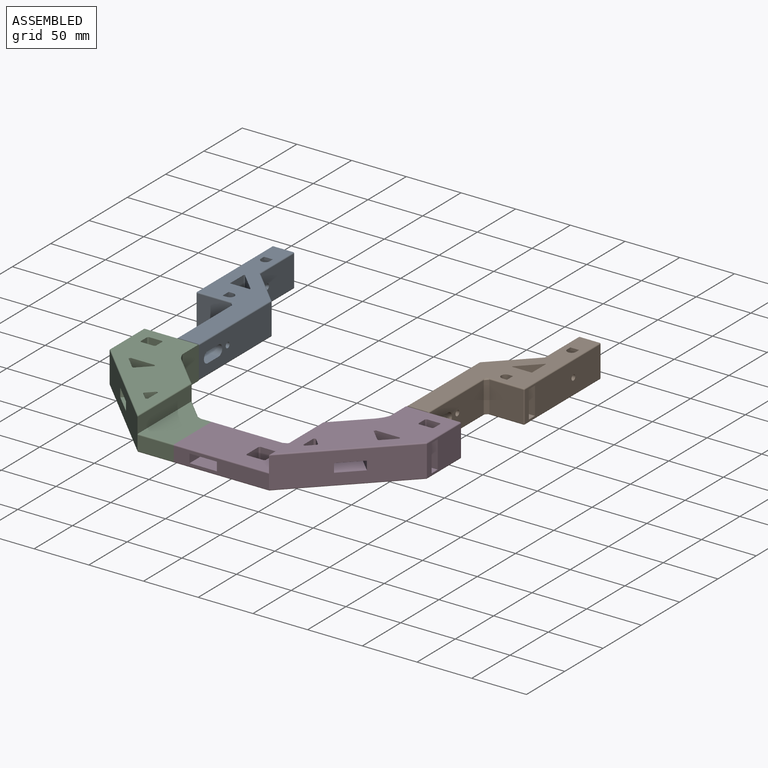
[diagram: assembled view]
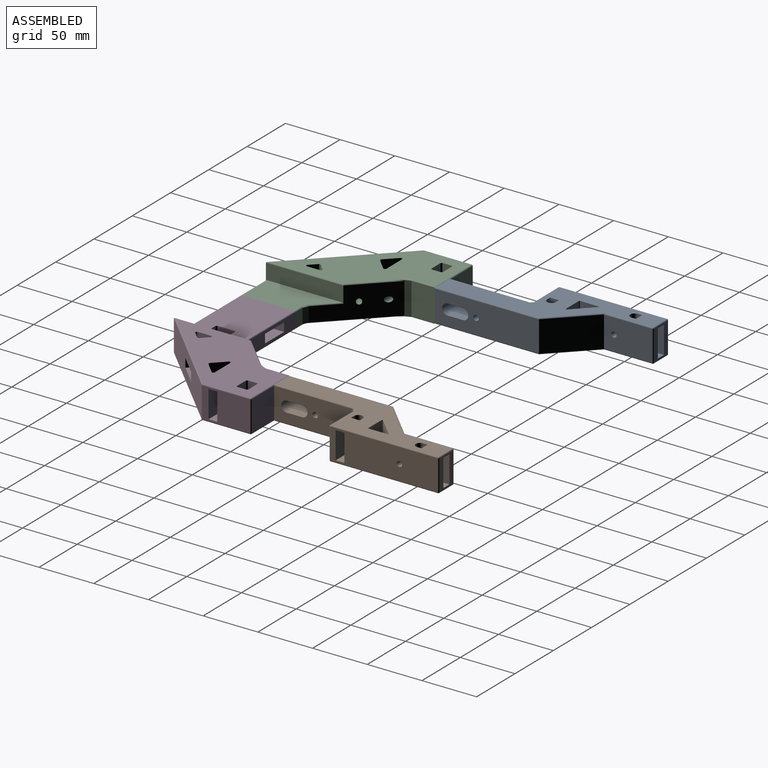
[diagram: assembled view, second angle]
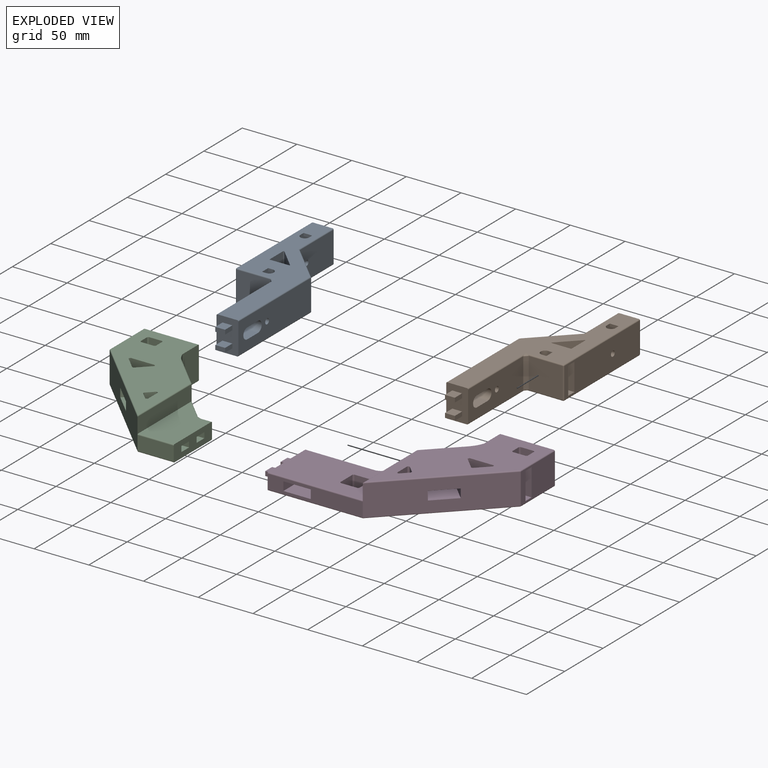
[diagram: exploded view]
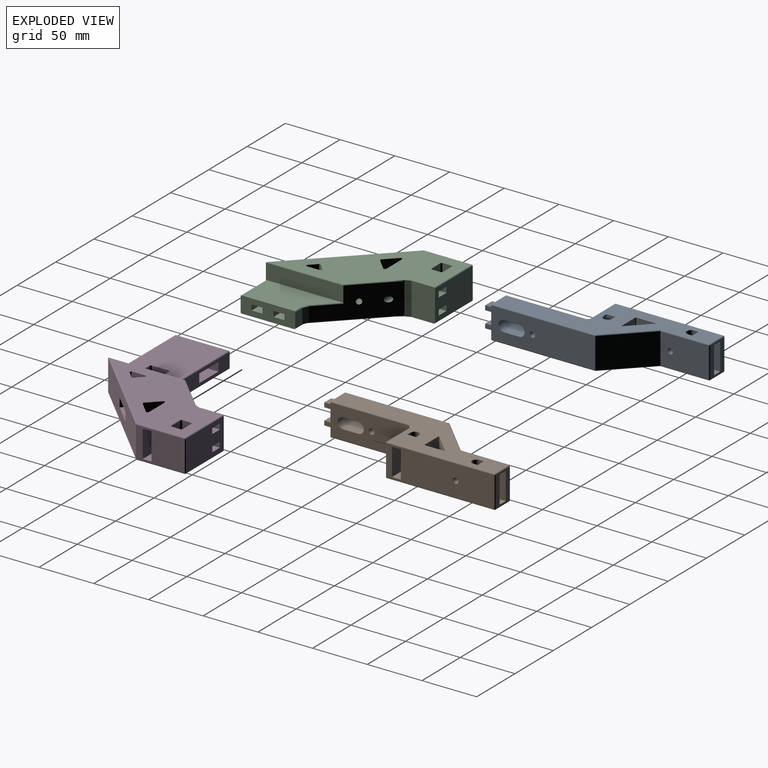
[diagram: exploded view, second angle]
ASSEMBLY  parts=4 mates=3
PART A: 73 faces, bbox 55x184.5x30 mm
  f0: plane 28x18mm, normal (0,1,0), area 304mm2, adj f29,f31,f39,f40,f41,f42,f48,f60
  f1: plane 98.22x28mm, normal (-1,0,0), area 2530.4mm2, adj f30,f31,f32,f33,f34,f35,f38,f50
  f2: plane 174x53mm, normal (0,0,-1), area 4217.3mm2, adj f6,f25,f26,f27,f54,f55,f57,f59
  f3: plane 174x53mm, normal (0,0,1), area 4103mm2, adj f6,f25,f26,f27,f33,f35,f36,f37
  f4: plane 94.59x28mm, normal (1,0,0), area 2410.2mm2, adj f6,f7,f8,f9,f10,f11,f28,f43
  f5: plane 71.92x28mm, normal (-1,0,0), area 1775.6mm2, adj f6,f7,f8,f9,f10,f11,f52,f54
  f6: plane 30x20mm, normal (0,-1,0), area 527.1mm2, adj f2,f3,f4,f5,f12,f13,f14,f15
  f7: cylinder r=5mm len=20mm, axis (-1,0,0), area 314.2mm2, adj f4,f5,f8,f10
  f8: plane 20x14mm, normal (0,0,-1), area 280mm2, adj f4,f5,f7,f9
  f9: cylinder r=5mm len=20mm, axis (-1,0,0), area 314.2mm2, adj f4,f5,f8,f10
  f10: plane 20x14mm, normal (0,0,1), area 280mm2, adj f4,f5,f7,f9
  f11: cylinder r=2.5mm len=20mm, axis (-1,0,0), area 314.2mm2, adj f4,f5
  f12: plane 9.5x9mm, normal (0,0,1), area 85.5mm2, adj f6,f13,f15,f16
  f13: plane 9.5x4mm, normal (-1,0,0), area 38mm2, adj f6,f12,f14,f16
  f14: plane 9.5x9mm, normal (0,0,-1), area 85.5mm2, adj f6,f13,f15,f16
  f15: plane 9.5x4mm, normal (1,0,0), area 38mm2, adj f6,f12,f14,f16
  f16: plane 9x4mm, normal (0,-1,0), area 36mm2, adj f12,f13,f14,f15
  f17: plane 9.5x9mm, normal (0,0,1), area 85.5mm2, adj f6,f18,f20,f21
  f18: plane 9.5x4mm, normal (-1,0,0), area 38mm2, adj f6,f17,f19,f21
  f19: plane 9.5x9mm, normal (0,0,-1), area 85.5mm2, adj f6,f18,f20,f21
  f20: plane 9.5x4mm, normal (1,0,0), area 38mm2, adj f6,f17,f19,f21
  f21: plane 9x4mm, normal (0,-1,0), area 36mm2, adj f17,f18,f19,f20
  f22: plane 44x28mm, normal (1,0,0), area 1212.4mm2, adj f24,f29,f38,f46,f64
  f23: plane 31x28mm, normal (0,-1,0), area 867.9mm2, adj f30,f53,f55,f66
  f24: plane 34.71x34.71mm, normal (0.71,0.71,0), area 1374.3mm2, adj f22,f28,f45,f63
  f25: plane 30x17.71mm, normal (-0.71,-0.71,0), area 751.6mm2, adj f2,f3,f70,f72
  f26: plane 30x17.79mm, normal (1,0,0), area 533.6mm2, adj f2,f3,f71,f72
  f27: plane 30x17.71mm, normal (0,1,0), area 531.4mm2, adj f2,f3,f70,f71
  f28: cylinder r=1mm len=28mm, axis (0,0,1), area 22mm2, adj f4,f24,f44,f61
  f29: cylinder r=1mm len=28mm, axis (0,0,-1), area 44mm2, adj f0,f22,f47,f62
  f30: cylinder r=1mm len=28mm, axis (0,0,-1), area 44.1mm2, adj f1,f23,f51,f56
  f31: cylinder r=1mm len=28mm, axis (0,0,1), area 44mm2, adj f0,f1,f49,f58
  f32: plane 20x8mm, normal (0,0,-1), area 160mm2, adj f1,f33,f35,f36
  f33: plane 27.5x24mm, normal (0,-1,0), area 610mm2, adj f1,f3,f32,f34,f36,f37
  f34: plane 28x8mm, normal (0,0,1), area 217.1mm2, adj f1,f33,f35,f37
  f35: plane 27.5x24mm, normal (0,1,0), area 610mm2, adj f1,f3,f32,f34,f36,f37
  f36: plane 8x2.5mm, normal (1,0,0), area 20mm2, adj f3,f32,f33,f35
  f37: cylinder r=4mm len=27.5mm, axis (0,0,1), area 345.6mm2, adj f3,f33,f34,f35
  f38: cylinder r=2.5mm len=20mm, axis (-1,0,0), area 314.2mm2, adj f1,f22
  f39: plane 20x8mm, normal (0,0,-1), area 160mm2, adj f0,f40,f42,f68
  f40: plane 27.5x24mm, normal (-1,0,0), area 610mm2, adj f0,f3,f39,f41,f68,f69
  f41: plane 28x8mm, normal (0,0,1), area 217.1mm2, adj f0,f40,f42,f69
  f42: plane 27.5x24mm, normal (1,0,0), area 610mm2, adj f0,f3,f39,f41,f68,f69
  f43: cylinder r=1mm len=94.59mm, axis (0,-1,0), area 148.6mm2, adj f3,f4,f6,f44
  f44: sphere r=1mm, area 0.5mm2, adj f28,f43,f45
  f45: cylinder r=1mm len=35.71mm, axis (-0.71,0.71,0), area 77.4mm2, adj f3,f24,f44,f46
  f46: cylinder r=1mm len=44.41mm, axis (0,1,0), area 69.4mm2, adj f3,f22,f45,f47
  f47: sphere r=1mm, area 1mm2, adj f29,f46,f48
  f48: cylinder r=1mm len=18mm, axis (-1,0,0), area 28.3mm2, adj f0,f3,f47,f49
  f49: sphere r=1mm, area 2.1mm2, adj f31,f48,f50
  f50: cylinder r=1mm len=98.22mm, axis (0,-1,0), area 154.3mm2, adj f1,f3,f49,f51
  f51: sphere r=1mm, area 1.6mm2, adj f30,f50,f53
  f52: cylinder r=1mm len=75.92mm, axis (0,-1,0), area 115.3mm2, adj f3,f5,f6,f65
  f53: cylinder r=1mm len=35mm, axis (1,0,0), area 51mm2, adj f3,f23,f51,f65
  f54: cylinder r=1mm len=75.92mm, axis (0,-1,0), area 115.3mm2, adj f2,f5,f6,f67
  f55: cylinder r=1mm len=35mm, axis (1,0,0), area 51mm2, adj f2,f23,f56,f67
  f56: sphere r=1mm, area 1.6mm2, adj f30,f55,f57
  f57: cylinder r=1mm len=98.22mm, axis (0,-1,0), area 154.3mm2, adj f1,f2,f56,f58
  f58: sphere r=1mm, area 2.1mm2, adj f31,f57,f60
  f59: cylinder r=1mm len=94.59mm, axis (0,1,0), area 148.6mm2, adj f2,f4,f6,f61
  f60: cylinder r=1mm len=18mm, axis (-1,0,0), area 28.3mm2, adj f0,f2,f58,f62
  f61: sphere r=1mm, area 0.5mm2, adj f28,f59,f63
  f62: sphere r=1mm, area 1mm2, adj f29,f60,f64
  f63: cylinder r=1mm len=35.71mm, axis (-0.71,0.71,0), area 77.4mm2, adj f2,f24,f61,f64
  f64: cylinder r=1mm len=44.41mm, axis (0,1,0), area 69.4mm2, adj f2,f22,f62,f63
  f65: bspline ~4.01x4mm, area 4.7mm2, adj f52,f53,f66
  f66: plane 28x3mm, normal (-0.71,-0.71,0), area 118.6mm2, adj f5,f23,f65,f67
  f67: bspline ~4.01x4mm, area 4.7mm2, adj f54,f55,f66
  f68: plane 8x2.5mm, normal (0,-1,0), area 20mm2, adj f3,f39,f40,f42
  f69: cylinder r=4mm len=27.5mm, axis (0,0,1), area 345.6mm2, adj f3,f40,f41,f42
  f70: plane 30x0.71mm, normal (-0.92,0.38,0), area 22.9mm2, adj f2,f3,f25,f27
  f71: plane 30x0.42mm, normal (0.71,0.71,0), area 17.6mm2, adj f2,f3,f26,f27
  f72: plane 30x0.71mm, normal (0.38,-0.92,0), area 23mm2, adj f2,f3,f25,f26
PART B: 73 faces, bbox 55x184.5x30 mm
  f0: plane 28x18mm, normal (0,1,0), area 304mm2, adj f29,f31,f39,f40,f41,f42,f48,f60
  f1: plane 98.22x28mm, normal (1,0,0), area 2530.4mm2, adj f30,f31,f32,f33,f34,f35,f38,f50
  f2: plane 174x53mm, normal (0,0,-1), area 4217.3mm2, adj f6,f25,f26,f27,f54,f55,f57,f59
  f3: plane 174x53mm, normal (0,0,1), area 4103mm2, adj f6,f25,f26,f27,f33,f35,f36,f37
  f4: plane 94.59x28mm, normal (-1,0,0), area 2410.2mm2, adj f6,f7,f8,f9,f10,f11,f28,f43
  f5: plane 71.92x28mm, normal (1,0,0), area 1775.6mm2, adj f6,f7,f8,f9,f10,f11,f52,f54
  f6: plane 30x20mm, normal (0,-1,0), area 527.1mm2, adj f2,f3,f4,f5,f12,f13,f14,f15
  f7: cylinder r=5mm len=20mm, axis (1,0,0), area 314.2mm2, adj f4,f5,f8,f10
  f8: plane 20x14mm, normal (0,0,-1), area 280mm2, adj f4,f5,f7,f9
  f9: cylinder r=5mm len=20mm, axis (1,0,0), area 314.2mm2, adj f4,f5,f8,f10
  f10: plane 20x14mm, normal (0,0,1), area 280mm2, adj f4,f5,f7,f9
  f11: cylinder r=2.5mm len=20mm, axis (1,0,0), area 314.2mm2, adj f4,f5
  f12: plane 9.5x9mm, normal (0,0,1), area 85.5mm2, adj f6,f13,f15,f16
  f13: plane 9.5x4mm, normal (1,0,0), area 38mm2, adj f6,f12,f14,f16
  f14: plane 9.5x9mm, normal (0,0,-1), area 85.5mm2, adj f6,f13,f15,f16
  f15: plane 9.5x4mm, normal (-1,0,0), area 38mm2, adj f6,f12,f14,f16
  f16: plane 9x4mm, normal (0,-1,0), area 36mm2, adj f12,f13,f14,f15
  f17: plane 9.5x9mm, normal (0,0,1), area 85.5mm2, adj f6,f18,f20,f21
  f18: plane 9.5x4mm, normal (1,0,0), area 38mm2, adj f6,f17,f19,f21
  f19: plane 9.5x9mm, normal (0,0,-1), area 85.5mm2, adj f6,f18,f20,f21
  f20: plane 9.5x4mm, normal (-1,0,0), area 38mm2, adj f6,f17,f19,f21
  f21: plane 9x4mm, normal (0,-1,0), area 36mm2, adj f17,f18,f19,f20
  f22: plane 44x28mm, normal (-1,0,0), area 1212.4mm2, adj f24,f29,f38,f46,f64
  f23: plane 31x28mm, normal (0,-1,0), area 867.9mm2, adj f30,f53,f55,f66
  f24: plane 34.71x34.71mm, normal (-0.71,0.71,0), area 1374.3mm2, adj f22,f28,f45,f63
  f25: plane 30x17.71mm, normal (0.71,-0.71,0), area 751.2mm2, adj f2,f3,f70,f72
  f26: plane 30x17.78mm, normal (-1,0,0), area 533.3mm2, adj f2,f3,f70,f71
  f27: plane 30x17.71mm, normal (0,1,0), area 531.2mm2, adj f2,f3,f71,f72
  f28: cylinder r=1mm len=28mm, axis (0,0,1), area 22mm2, adj f4,f24,f44,f61
  f29: cylinder r=1mm len=28mm, axis (0,0,-1), area 44mm2, adj f0,f22,f47,f62
  f30: cylinder r=1mm len=28mm, axis (0,0,-1), area 44.1mm2, adj f1,f23,f51,f56
  f31: cylinder r=1mm len=28mm, axis (0,0,1), area 44mm2, adj f0,f1,f49,f58
  f32: plane 20x8mm, normal (0,0,-1), area 160mm2, adj f1,f33,f35,f36
  f33: plane 27.5x24mm, normal (0,-1,0), area 610mm2, adj f1,f3,f32,f34,f36,f37
  f34: plane 28x8mm, normal (0,0,1), area 217.1mm2, adj f1,f33,f35,f37
  f35: plane 27.5x24mm, normal (0,1,0), area 610mm2, adj f1,f3,f32,f34,f36,f37
  f36: plane 8x2.5mm, normal (-1,0,0), area 20mm2, adj f3,f32,f33,f35
  f37: cylinder r=4mm len=27.5mm, axis (0,0,1), area 345.6mm2, adj f3,f33,f34,f35
  f38: cylinder r=2.5mm len=20mm, axis (1,0,0), area 314.2mm2, adj f1,f22
  f39: plane 20x8mm, normal (0,0,-1), area 160mm2, adj f0,f40,f42,f68
  f40: plane 27.5x24mm, normal (1,0,0), area 610mm2, adj f0,f3,f39,f41,f68,f69
  f41: plane 28x8mm, normal (0,0,1), area 217.1mm2, adj f0,f40,f42,f69
  f42: plane 27.5x24mm, normal (-1,0,0), area 610mm2, adj f0,f3,f39,f41,f68,f69
  f43: cylinder r=1mm len=94.59mm, axis (0,-1,0), area 148.6mm2, adj f3,f4,f6,f44
  f44: sphere r=1mm, area 0.8mm2, adj f28,f43,f45
  f45: cylinder r=1mm len=35.71mm, axis (0.71,0.71,0), area 77.4mm2, adj f3,f24,f44,f46
  f46: cylinder r=1mm len=44.41mm, axis (0,1,0), area 69.4mm2, adj f3,f22,f45,f47
  f47: sphere r=1mm, area 1.6mm2, adj f29,f46,f48
  f48: cylinder r=1mm len=18mm, axis (1,0,0), area 28.3mm2, adj f0,f3,f47,f49
  f49: sphere r=1mm, area 1.6mm2, adj f31,f48,f50
  f50: cylinder r=1mm len=98.22mm, axis (0,-1,0), area 154.3mm2, adj f1,f3,f49,f51
  f51: sphere r=1mm, area 2.1mm2, adj f30,f50,f53
  f52: cylinder r=1mm len=75.92mm, axis (0,-1,0), area 115.3mm2, adj f3,f5,f6,f65
  f53: cylinder r=1mm len=35mm, axis (-1,0,0), area 51mm2, adj f3,f23,f51,f65
  f54: cylinder r=1mm len=75.92mm, axis (0,-1,0), area 115.3mm2, adj f2,f5,f6,f67
  f55: cylinder r=1mm len=35mm, axis (-1,0,0), area 51mm2, adj f2,f23,f56,f67
  f56: sphere r=1mm, area 2.1mm2, adj f30,f55,f57
  f57: cylinder r=1mm len=98.22mm, axis (0,-1,0), area 154.3mm2, adj f1,f2,f56,f58
  f58: sphere r=1mm, area 1.6mm2, adj f31,f57,f60
  f59: cylinder r=1mm len=94.59mm, axis (0,1,0), area 148.6mm2, adj f2,f4,f6,f61
  f60: cylinder r=1mm len=18mm, axis (1,0,0), area 28.3mm2, adj f0,f2,f58,f62
  f61: sphere r=1mm, area 0.8mm2, adj f28,f59,f63
  f62: sphere r=1mm, area 1.6mm2, adj f29,f60,f64
  f63: cylinder r=1mm len=35.71mm, axis (0.71,0.71,0), area 77.4mm2, adj f2,f24,f61,f64
  f64: cylinder r=1mm len=44.41mm, axis (0,1,0), area 69.4mm2, adj f2,f22,f62,f63
  f65: bspline ~4.01x4mm, area 4.7mm2, adj f52,f53,f66
  f66: plane 28x3mm, normal (0.71,-0.71,0), area 118.6mm2, adj f5,f23,f65,f67
  f67: bspline ~4.01x4mm, area 4.7mm2, adj f54,f55,f66
  f68: plane 8x2.5mm, normal (0,-1,0), area 20mm2, adj f3,f39,f40,f42
  f69: cylinder r=4mm len=27.5mm, axis (0,0,1), area 345.6mm2, adj f3,f40,f41,f42
  f70: plane 30x0.71mm, normal (-0.38,-0.92,0), area 23.1mm2, adj f2,f3,f25,f26
  f71: plane 30x0.42mm, normal (-0.71,0.71,0), area 17.7mm2, adj f2,f3,f26,f27
  f72: plane 30x0.71mm, normal (0.92,0.38,0), area 23.1mm2, adj f2,f3,f25,f27
PART C: 89 faces, bbox 119.1x131.1x45.7 mm
  f0: plane 50x15mm, normal (1,0,0), area 649.1mm2, adj f1,f2,f3,f4,f5,f6,f7,f27
  f1: plane 128.07x117mm, normal (0,0,-1), area 7117.1mm2, adj f0,f4,f6,f10,f39,f40,f42,f52
  f2: plane 13x9.35mm, normal (0,1,0), area 121.6mm2, adj f0,f5,f6,f57
  f3: plane 33.06x13mm, normal (0,-1,0), area 429.8mm2, adj f0,f4,f7,f24
  f4: cylinder r=1mm len=33.06mm, axis (-1,0,0), area 51.6mm2, adj f0,f1,f3,f39
  f5: cylinder r=1mm len=12.76mm, axis (1,0,0), area 16.6mm2, adj f0,f2,f27,f58
  f6: cylinder r=1mm len=12.76mm, axis (1,0,0), area 16.6mm2, adj f0,f1,f2,f56
  f7: cylinder r=1mm len=33.06mm, axis (-1,0,0), area 51.9mm2, adj f0,f3,f26,f27
  f8: plane 126.65x82.94mm, normal (0,0,1), area 5254.6mm2, adj f10,f45,f47,f48,f49,f51,f55,f59
  f9: plane 49x28mm, normal (0,1,0), area 1272mm2, adj f10,f28,f29,f30,f31,f33,f34,f35
  f10: plane 30x21.5mm, normal (1,0,0), area 642mm2, adj f1,f8,f9,f42,f51,f53,f54,f55
  f11: plane 17.68x17.68mm, normal (-0.71,-0.71,0), area 180.4mm2, adj f17,f18,f19,f20,f21
  f12: plane 25x8mm, normal (-1,0,0), area 180.4mm2, adj f13,f14,f15,f16,f22
  f13: plane 20x8mm, normal (0,0,-1), area 160mm2, adj f12,f14,f16,f23
  f14: plane 25x20mm, normal (0,1,0), area 500mm2, adj f12,f13,f15,f23
  f15: plane 20x8mm, normal (0,0,1), area 160mm2, adj f12,f14,f16,f23
  f16: plane 25x20mm, normal (0,-1,0), area 500mm2, adj f12,f13,f15,f23
  f17: plane 14.14x14.14mm, normal (-0.71,0.71,0), area 160mm2, adj f11,f18,f20,f24
  f18: plane 31.82x31.82mm, normal (0,0,1), area 500mm2, adj f11,f17,f19,f24
  f19: plane 14.14x14.14mm, normal (0.71,-0.71,0), area 160mm2, adj f11,f18,f20,f24
  f20: plane 31.82x31.82mm, normal (0,0,-1), area 500mm2, adj f11,f17,f19,f24
  f21: cylinder r=2.5mm len=24.75mm, axis (-0.71,-0.71,0), area 471.2mm2, adj f11,f25
  f22: cylinder r=2.5mm len=43.09mm, axis (-1,0,0), area 638.8mm2, adj f12,f25
  f23: plane 44.12x28mm, normal (-1,0,0), area 1035.4mm2, adj f13,f14,f15,f16,f24,f38,f40,f49
  f24: plane 84.94x84.94mm, normal (-0.71,-0.71,0), area 3163.4mm2, adj f3,f17,f18,f19,f20,f23,f26,f39
  f25: plane 52.46x52.46mm, normal (0.71,0.71,0), area 1587.7mm2, adj f21,f22,f43,f44,f45,f52,f54,f57
  f26: plane 70.36x15.06mm, normal (1,0,0), area 984.5mm2, adj f7,f24,f27,f43,f44,f47
  f27: plane 68.3x33.06mm, normal (0,0,1), area 1792.9mm2, adj f0,f5,f7,f26,f43
  f28: plane 10x10mm, normal (0,0,-1), area 100mm2, adj f9,f29,f31,f32
  f29: plane 10x5mm, normal (1,0,0), area 50mm2, adj f9,f28,f30,f32
  f30: plane 10x10mm, normal (0,0,1), area 100mm2, adj f9,f29,f31,f32
  f31: plane 10x5mm, normal (-1,0,0), area 50mm2, adj f9,f28,f30,f32
  f32: plane 10x5mm, normal (0,1,0), area 50mm2, adj f28,f29,f30,f31
  f33: plane 10x10mm, normal (0,0,-1), area 100mm2, adj f9,f34,f36,f37
  f34: plane 10x5mm, normal (1,0,0), area 50mm2, adj f9,f33,f35,f37
  f35: plane 10x10mm, normal (0,0,1), area 100mm2, adj f9,f34,f36,f37
  f36: plane 10x5mm, normal (-1,0,0), area 50mm2, adj f9,f33,f35,f37
  f37: plane 10x5mm, normal (0,1,0), area 50mm2, adj f33,f34,f35,f36
  f38: cylinder r=1mm len=28mm, axis (0,0,-1), area 44mm2, adj f9,f23,f41,f50
  f39: cylinder r=1mm len=85.65mm, axis (-0.71,0.71,0), area 188mm2, adj f1,f4,f24,f40
  f40: cylinder r=1mm len=44.12mm, axis (0,1,0), area 69mm2, adj f1,f23,f39,f41
  f41: sphere r=1mm, area 1.6mm2, adj f38,f40,f42
  f42: cylinder r=1mm len=49mm, axis (1,0,0), area 77mm2, adj f1,f9,f10,f41
  f43: cylinder r=1mm len=22mm, axis (0.71,-0.71,0), area 42.8mm2, adj f25,f26,f27,f44,f58
  f44: cylinder r=1mm len=15mm, axis (0,0,-1), area 11.5mm2, adj f25,f26,f43,f46
  f45: cylinder r=1mm len=33.23mm, axis (-0.71,0.71,0), area 67.5mm2, adj f8,f25,f46,f55
  f46: sphere r=1mm, area 0.8mm2, adj f44,f45,f47
  f47: cylinder r=1mm len=70.3mm, axis (0,-1,0), area 108.5mm2, adj f8,f26,f46,f48
  f48: cylinder r=1mm len=85.65mm, axis (0.71,-0.71,0), area 186.5mm2, adj f8,f24,f47,f49
  f49: cylinder r=1mm len=44.12mm, axis (0,-1,0), area 69mm2, adj f8,f23,f48,f50
  f50: sphere r=1mm, area 1.6mm2, adj f38,f49,f51
  f51: cylinder r=1mm len=49mm, axis (1,0,0), area 77mm2, adj f8,f9,f10,f50
  f52: cylinder r=1mm len=54.53mm, axis (0.71,-0.71,0), area 110.4mm2, adj f1,f25,f53,f56
  f53: bspline ~12.57x8.31mm, area 7.3mm2, adj f1,f10,f52,f54
  f54: plane 28x5.12mm, normal (0.92,0.38,0), area 155.2mm2, adj f10,f25,f53,f55
  f55: bspline ~12.57x8.31mm, area 7.3mm2, adj f8,f10,f45,f54
  f56: bspline ~5.13x3.12mm, area 8.2mm2, adj f6,f52,f57
  f57: plane 13x5.12mm, normal (0.38,0.92,0), area 72.1mm2, adj f2,f25,f56,f58
  f58: bspline ~5.13x3.12mm, area 8.2mm2, adj f5,f43,f57
  f59: plane 30x12mm, normal (0,-1,0), area 360mm2, adj f1,f8,f87,f88
  f60: plane 30x8.5mm, normal (-1,0,0), area 254.9mm2, adj f1,f8,f79,f87
  f61: plane 30x12mm, normal (0,1,0), area 360mm2, adj f1,f8,f79,f83
  f62: plane 30x8.5mm, normal (1,0,0), area 254.9mm2, adj f1,f8,f83,f88
  f63: plane 30x22.25mm, normal (0,-1,0), area 667.6mm2, adj f1,f8,f81,f86
  f64: plane 30x11.13mm, normal (-0.71,0.71,0), area 472mm2, adj f1,f8,f84,f86
  f65: plane 30x11.13mm, normal (0.71,0.71,0), area 472mm2, adj f1,f8,f81,f84
  f66: plane 30x13.48mm, normal (-1,0,0), area 404.3mm2, adj f1,f8,f80,f85
  f67: plane 30x6.74mm, normal (0.71,0.71,0), area 285.9mm2, adj f1,f8,f82,f85
  f68: plane 30x6.74mm, normal (0.71,-0.71,0), area 285.9mm2, adj f1,f8,f80,f82
  f69: plane 10x10mm, normal (0,0,-1), area 100mm2, adj f0,f70,f72,f73
  f70: plane 10x5mm, normal (0,1,0), area 50mm2, adj f0,f69,f71,f73
  f71: plane 10x10mm, normal (0,0,1), area 100mm2, adj f0,f70,f72,f73
  f72: plane 10x5mm, normal (0,-1,0), area 50mm2, adj f0,f69,f71,f73
  f73: plane 10x5mm, normal (1,0,0), area 50mm2, adj f69,f70,f71,f72
  f74: plane 10x10mm, normal (0,0,-1), area 100mm2, adj f0,f75,f77,f78
  f75: plane 10x5mm, normal (0,1,0), area 50mm2, adj f0,f74,f76,f78
  f76: plane 10x10mm, normal (0,0,1), area 100mm2, adj f0,f75,f77,f78
  f77: plane 10x5mm, normal (0,-1,0), area 50mm2, adj f0,f74,f76,f78
  f78: plane 10x5mm, normal (1,0,0), area 50mm2, adj f74,f75,f76,f77
  f79: plane 30x1mm, normal (-0.71,0.71,0), area 42.4mm2, adj f1,f8,f60,f61
  f80: plane 30x1.71mm, normal (-0.38,-0.92,0), area 55.4mm2, adj f1,f8,f66,f68
  f81: plane 30x1.71mm, normal (0.92,-0.38,0), area 55.4mm2, adj f1,f8,f63,f65
  f82: plane 30x1.41mm, normal (1,0,0), area 42.4mm2, adj f1,f8,f67,f68
  f83: plane 30x1mm, normal (0.71,0.71,0), area 42.4mm2, adj f1,f8,f61,f62
  f84: plane 30x1.41mm, normal (0,1,0), area 42.4mm2, adj f1,f8,f64,f65
  f85: plane 30x1.71mm, normal (-0.38,0.92,0), area 55.4mm2, adj f1,f8,f66,f67
  f86: plane 30x1.71mm, normal (-0.92,-0.38,0), area 55.4mm2, adj f1,f8,f63,f64
  f87: plane 30x1mm, normal (-0.71,-0.71,0), area 42.4mm2, adj f1,f8,f59,f60
  f88: plane 30x1mm, normal (0.71,-0.71,0), area 42.4mm2, adj f1,f8,f59,f62
PART D: 101 faces, bbox 182.6x131.1x45.5 mm
  f0: plane 171x128.07mm, normal (0,0,-1), area 9397.8mm2, adj f2,f5,f7,f11,f43,f44,f46,f56
  f1: plane 87.06x68.3mm, normal (0,0,1), area 4070.8mm2, adj f2,f6,f8,f27,f47,f83,f84,f85
  f2: plane 50x15mm, normal (-1,0,0), area 677.1mm2, adj f0,f1,f3,f4,f5,f6,f7,f8
  f3: plane 63.35x13mm, normal (0,1,0), area 623.6mm2, adj f2,f6,f7,f28,f29,f30,f31,f61
  f4: plane 87.06x13mm, normal (0,-1,0), area 931.8mm2, adj f2,f5,f8,f25,f28,f29,f30,f31
  f5: cylinder r=1mm len=87.06mm, axis (1,0,0), area 136.4mm2, adj f0,f2,f4,f43
  f6: cylinder r=1mm len=66.76mm, axis (-1,0,0), area 101.5mm2, adj f1,f2,f3,f62
  f7: cylinder r=1mm len=66.76mm, axis (-1,0,0), area 101.5mm2, adj f0,f2,f3,f60
  f8: cylinder r=1mm len=87.06mm, axis (1,0,0), area 136.8mm2, adj f1,f2,f4,f27
  f9: plane 126.65x82.94mm, normal (0,0,1), area 5254.6mm2, adj f11,f49,f51,f52,f53,f55,f59,f63
  f10: plane 49x28mm, normal (0,1,0), area 1272mm2, adj f11,f32,f33,f34,f35,f37,f38,f39
  f11: plane 30x21.5mm, normal (-1,0,0), area 642mm2, adj f0,f9,f10,f46,f55,f57,f58,f59
  f12: plane 17.68x17.68mm, normal (0.71,-0.71,0), area 180.4mm2, adj f18,f19,f20,f21,f22
  f13: plane 25x8mm, normal (1,0,0), area 180.4mm2, adj f14,f15,f16,f17,f23
  f14: plane 20x8mm, normal (0,0,-1), area 160mm2, adj f13,f15,f17,f24
  f15: plane 25x20mm, normal (0,1,0), area 500mm2, adj f13,f14,f16,f24
  f16: plane 20x8mm, normal (0,0,1), area 160mm2, adj f13,f15,f17,f24
  f17: plane 25x20mm, normal (0,-1,0), area 500mm2, adj f13,f14,f16,f24
  f18: plane 14.14x14.14mm, normal (0.71,0.71,0), area 160mm2, adj f12,f19,f21,f25
  f19: plane 31.82x31.82mm, normal (0,0,1), area 500mm2, adj f12,f18,f20,f25
  f20: plane 14.14x14.14mm, normal (-0.71,-0.71,0), area 160mm2, adj f12,f19,f21,f25
  f21: plane 31.82x31.82mm, normal (0,0,-1), area 500mm2, adj f12,f18,f20,f25
  f22: cylinder r=2.5mm len=24.75mm, axis (0.71,-0.71,0), area 471.2mm2, adj f12,f26
  f23: cylinder r=2.5mm len=43.09mm, axis (1,0,0), area 638.8mm2, adj f13,f26
  f24: plane 44.12x28mm, normal (1,0,0), area 1035.4mm2, adj f14,f15,f16,f17,f25,f42,f44,f53
  f25: plane 84.94x84.94mm, normal (0.71,-0.71,0), area 3163.4mm2, adj f4,f18,f19,f20,f21,f24,f27,f43
  f26: plane 52.46x52.46mm, normal (-0.71,0.71,0), area 1587.7mm2, adj f22,f23,f47,f48,f49,f56,f58,f61
  f27: plane 70.36x15.06mm, normal (-1,0,0), area 984.5mm2, adj f1,f8,f25,f47,f48,f51
  f28: plane 50x8mm, normal (-1,0,0), area 400mm2, adj f3,f4,f29,f30
  f29: plane 50x25mm, normal (0,0,-1), area 1250mm2, adj f3,f4,f28,f31
  f30: plane 50x25mm, normal (0,0,1), area 1250mm2, adj f3,f4,f28,f31
  f31: plane 50x8mm, normal (1,0,0), area 400mm2, adj f3,f4,f29,f30
  f32: plane 10x10mm, normal (0,0,-1), area 100mm2, adj f10,f33,f35,f36
  f33: plane 10x5mm, normal (-1,0,0), area 50mm2, adj f10,f32,f34,f36
  f34: plane 10x10mm, normal (0,0,1), area 100mm2, adj f10,f33,f35,f36
  f35: plane 10x5mm, normal (1,0,0), area 50mm2, adj f10,f32,f34,f36
  f36: plane 10x5mm, normal (0,1,0), area 50mm2, adj f32,f33,f34,f35
  f37: plane 10x10mm, normal (0,0,-1), area 100mm2, adj f10,f38,f40,f41
  f38: plane 10x5mm, normal (-1,0,0), area 50mm2, adj f10,f37,f39,f41
  f39: plane 10x10mm, normal (0,0,1), area 100mm2, adj f10,f38,f40,f41
  f40: plane 10x5mm, normal (1,0,0), area 50mm2, adj f10,f37,f39,f41
  f41: plane 10x5mm, normal (0,1,0), area 50mm2, adj f37,f38,f39,f40
  f42: cylinder r=1mm len=28mm, axis (0,0,-1), area 44mm2, adj f10,f24,f45,f54
  f43: cylinder r=1mm len=85.65mm, axis (0.71,0.71,0), area 188mm2, adj f0,f5,f25,f44
  f44: cylinder r=1mm len=44.12mm, axis (0,1,0), area 69mm2, adj f0,f24,f43,f45
  f45: sphere r=1mm, area 1mm2, adj f42,f44,f46
  f46: cylinder r=1mm len=49mm, axis (-1,0,0), area 77mm2, adj f0,f10,f11,f45
  f47: cylinder r=1mm len=22mm, axis (-0.71,-0.71,0), area 42.8mm2, adj f1,f26,f27,f48,f62
  f48: cylinder r=1mm len=15mm, axis (0,0,-1), area 11.5mm2, adj f26,f27,f47,f50
  f49: cylinder r=1mm len=33.23mm, axis (0.71,0.71,0), area 67.5mm2, adj f9,f26,f50,f59
  f50: sphere r=1mm, area 0.8mm2, adj f48,f49,f51
  f51: cylinder r=1mm len=70.3mm, axis (0,-1,0), area 108.5mm2, adj f9,f27,f50,f52
  f52: cylinder r=1mm len=85.65mm, axis (-0.71,-0.71,0), area 186.5mm2, adj f9,f25,f51,f53
  f53: cylinder r=1mm len=44.12mm, axis (0,-1,0), area 69mm2, adj f9,f24,f52,f54
  f54: sphere r=1mm, area 1mm2, adj f42,f53,f55
  f55: cylinder r=1mm len=49mm, axis (-1,0,0), area 77mm2, adj f9,f10,f11,f54
  f56: cylinder r=1mm len=54.53mm, axis (-0.71,-0.71,0), area 110.4mm2, adj f0,f26,f57,f60
  f57: bspline ~11.66x8.24mm, area 7.3mm2, adj f0,f11,f56,f58
  f58: plane 28x5.12mm, normal (-0.92,0.38,0), area 155.2mm2, adj f11,f26,f57,f59
  f59: bspline ~11.66x8.24mm, area 7.3mm2, adj f9,f11,f49,f58
  f60: bspline ~5.13x3.12mm, area 8.2mm2, adj f7,f56,f61
  f61: plane 13x5.12mm, normal (-0.38,0.92,0), area 72.1mm2, adj f3,f26,f60,f62
  f62: bspline ~5.13x3.12mm, area 8.2mm2, adj f6,f47,f61
  f63: plane 30x12mm, normal (0,-1,0), area 360mm2, adj f0,f9,f97,f100
  f64: plane 30x8.5mm, normal (1,0,0), area 254.9mm2, adj f0,f9,f89,f100
  f65: plane 30x12mm, normal (0,1,0), area 360mm2, adj f0,f9,f89,f92
  f66: plane 30x8.5mm, normal (-1,0,0), area 254.9mm2, adj f0,f9,f92,f97
  f67: plane 30x22.25mm, normal (0,-1,0), area 667.6mm2, adj f0,f9,f88,f95
  f68: plane 30x11.13mm, normal (0.71,0.71,0), area 472mm2, adj f0,f9,f88,f93
  f69: plane 30x11.13mm, normal (-0.71,0.71,0), area 472mm2, adj f0,f9,f93,f95
  f70: plane 30x13.48mm, normal (1,0,0), area 404.3mm2, adj f0,f9,f87,f98
  f71: plane 30x6.74mm, normal (-0.71,0.71,0), area 285.9mm2, adj f0,f9,f87,f91
  f72: plane 30x6.74mm, normal (-0.71,-0.71,0), area 285.9mm2, adj f0,f9,f91,f98
  f73: plane 9.5x9mm, normal (0,0,1), area 85.5mm2, adj f2,f74,f76,f77
  f74: plane 9.5x4mm, normal (0,1,0), area 38mm2, adj f2,f73,f75,f77
  f75: plane 9.5x9mm, normal (0,0,-1), area 85.5mm2, adj f2,f74,f76,f77
  f76: plane 9.5x4mm, normal (0,-1,0), area 38mm2, adj f2,f73,f75,f77
  f77: plane 9x4mm, normal (-1,0,0), area 36mm2, adj f73,f74,f75,f76
  f78: plane 9.5x9mm, normal (0,0,1), area 85.5mm2, adj f2,f79,f81,f82
  f79: plane 9.5x4mm, normal (0,1,0), area 38mm2, adj f2,f78,f80,f82
  f80: plane 9.5x9mm, normal (0,0,-1), area 85.5mm2, adj f2,f79,f81,f82
  f81: plane 9.5x4mm, normal (0,-1,0), area 38mm2, adj f2,f78,f80,f82
  f82: plane 9x4mm, normal (-1,0,0), area 36mm2, adj f78,f79,f80,f81
  f83: plane 15.56x15mm, normal (0,-1,0), area 233.4mm2, adj f0,f1,f96,f99
  f84: plane 16x15mm, normal (1,0,0), area 240mm2, adj f0,f1,f90,f99
  f85: plane 15.56x15mm, normal (0,1,0), area 233.4mm2, adj f0,f1,f90,f94
  f86: plane 16x15mm, normal (-1,0,0), area 240mm2, adj f0,f1,f94,f96
  f87: plane 30x1.71mm, normal (0.38,0.92,0), area 55.4mm2, adj f0,f9,f70,f71
  f88: plane 30x1.71mm, normal (0.92,-0.38,0), area 55.4mm2, adj f0,f9,f67,f68
  f89: plane 30x1mm, normal (0.71,0.71,0), area 42.4mm2, adj f0,f9,f64,f65
  f90: plane 15x1mm, normal (0.71,0.71,0), area 21.2mm2, adj f0,f1,f84,f85
  f91: plane 30x1.41mm, normal (-1,0,0), area 42.4mm2, adj f0,f9,f71,f72
  f92: plane 30x1mm, normal (-0.71,0.71,0), area 42.4mm2, adj f0,f9,f65,f66
  f93: plane 30x1.41mm, normal (0,1,0), area 42.4mm2, adj f0,f9,f68,f69
  f94: plane 15x1mm, normal (-0.71,0.71,0), area 21.2mm2, adj f0,f1,f85,f86
  f95: plane 30x1.71mm, normal (-0.92,-0.38,0), area 55.4mm2, adj f0,f9,f67,f69
  f96: plane 15x1mm, normal (-0.71,-0.71,0), area 21.2mm2, adj f0,f1,f83,f86
  f97: plane 30x1mm, normal (-0.71,-0.71,0), area 42.4mm2, adj f0,f9,f63,f66
  f98: plane 30x1.71mm, normal (0.38,-0.92,0), area 55.4mm2, adj f0,f9,f70,f72
  f99: plane 15x1mm, normal (0.71,-0.71,0), area 21.2mm2, adj f0,f1,f83,f84
  f100: plane 30x1mm, normal (0.71,-0.71,0), area 42.4mm2, adj f0,f9,f63,f64
PLACE A t=(83.13,18.44,-15)mm
PLACE B t=(-116.87,18.44,-15)mm
PLACE C t=(83.13,218.44,-15)mm
PLACE D t=(-116.87,218.44,-15)mm
MATE fastened B.f6 <-> D.f10  axis (0,-1,0) through (88.13,103.5,7.5)mm
MATE fastened C.f9 <-> A.f6  axis (0,1,0) through (-121.87,103.5,7.5)mm
MATE fastened C.f0 <-> D.f2  axis (1,0,0) through (-43.87,-11.56,-7.5)mm
